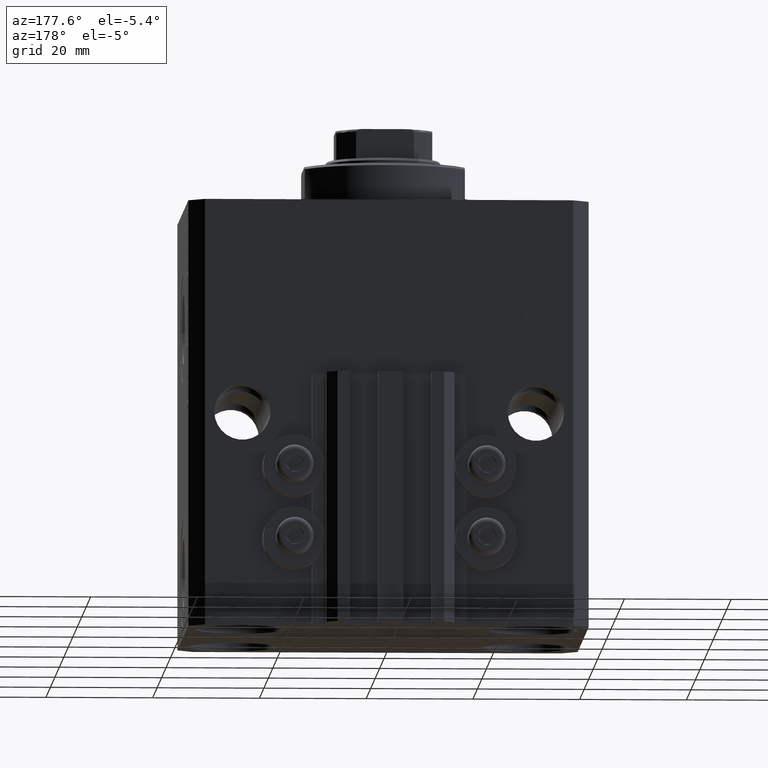
[diagram: clean part render]
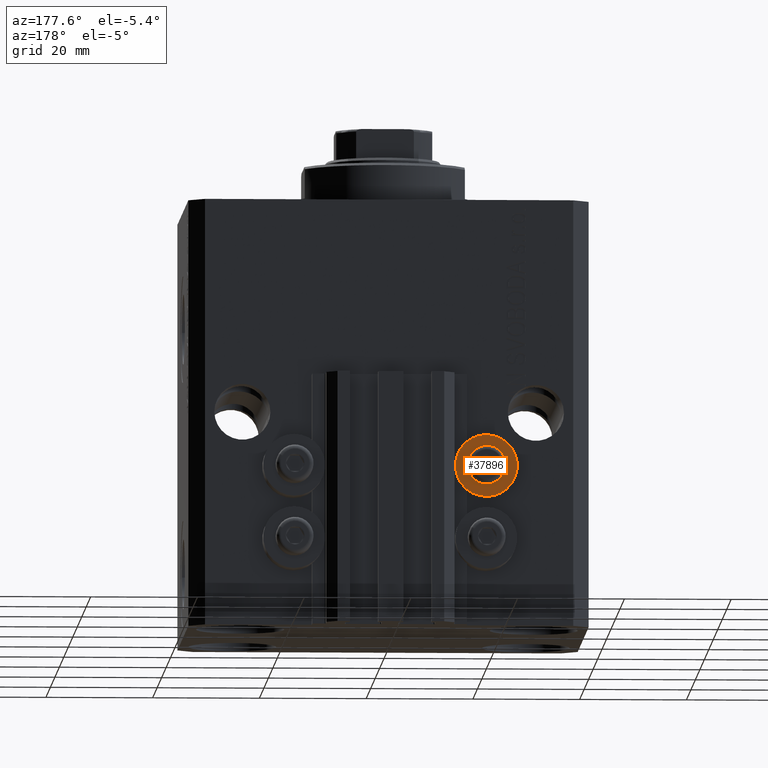
[diagram: same view with one face highlighted and labeled with its STEP entity id]
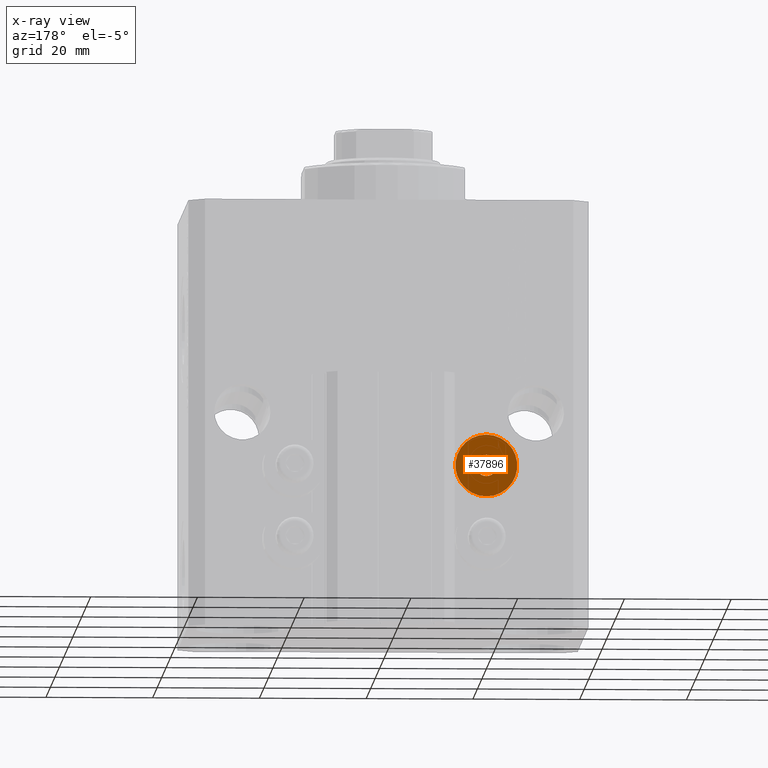
[diagram: x-ray of the same camera — body ghosted, the highlighted face saturated]
A machine part, auxiliary view. The second image highlights one B-rep face of the part: STEP entity #37896.
The next image is the same camera in x-ray: the body ghosted, the highlighted face saturated — about 0% of this face is hidden behind the body in this view.
In plain terms, the highlighted planar face has unit normal (0, -1, 0).
Its self-contained STEP definition (entity closure, byte-faithful):
#1105 = CARTESIAN_POINT ( 'NONE',  ( -18.00000000000000355, 32.49999999996100541, -48.39999999999999858 ) ) ;
#1200 = EDGE_CURVE ( 'NONE', #5708, #13391, #27921, .T. ) ;
#1711 = AXIS2_PLACEMENT_3D ( 'NONE', #6649, #6889, #7122 ) ;
#3338 = VERTEX_POINT ( 'NONE', #1105 ) ;
#3718 = AXIS2_PLACEMENT_3D ( 'NONE', #41409, #12500, #34310 ) ;
#5708 = VERTEX_POINT ( 'NONE', #44664 ) ;
#6141 = DIRECTION ( 'NONE',  ( 0.000000000000000000, 1.000000000000000000, 0.000000000000000000 ) ) ;
#6504 = ORIENTED_EDGE ( 'NONE', *, *, #13898, .F. ) ;
#6649 = CARTESIAN_POINT ( 'NONE',  ( -18.00000000000000355, 32.49999999996100541, -50.39999999999999858 ) ) ;
#6889 = DIRECTION ( 'NONE',  ( 0.000000000000000000, 1.000000000000000000, 0.000000000000000000 ) ) ;
#7122 = DIRECTION ( 'NONE',  ( 0.000000000000000000, 0.000000000000000000, 1.000000000000000000 ) ) ;
#9416 = EDGE_CURVE ( 'NONE', #3338, #24206, #31095, .T. ) ;
#9647 = PLANE ( 'NONE',  #3718 ) ;
#10401 = DIRECTION ( 'NONE',  ( 0.000000000000000000, 0.000000000000000000, 1.000000000000000000 ) ) ;
#12500 = DIRECTION ( 'NONE',  ( 0.000000000000000000, -1.000000000000000000, 0.000000000000000000 ) ) ;
#13391 = VERTEX_POINT ( 'NONE', #14170 ) ;
#13898 = EDGE_CURVE ( 'NONE', #24206, #3338, #34998, .T. ) ;
#13925 = CARTESIAN_POINT ( 'NONE',  ( -18.00000000000000355, 32.49999999996100541, -50.39999999999999858 ) ) ;
#14041 = AXIS2_PLACEMENT_3D ( 'NONE', #31758, #24428, #10401 ) ;
#14170 = CARTESIAN_POINT ( 'NONE',  ( -18.00000000000000355, 32.49999999996100541, -44.60000000000000142 ) ) ;
#14473 = CARTESIAN_POINT ( 'NONE',  ( -18.00000000000000355, 32.49999999996100541, -50.39999999999999858 ) ) ;
#16068 = FACE_OUTER_BOUND ( 'NONE', #19827, .T. ) ;
#18261 = DIRECTION ( 'NONE',  ( 0.000000000000000000, 0.000000000000000000, 1.000000000000000000 ) ) ;
#19827 = EDGE_LOOP ( 'NONE', ( #20865, #39350 ) ) ;
#20865 = ORIENTED_EDGE ( 'NONE', *, *, #29286, .T. ) ;
#24206 = VERTEX_POINT ( 'NONE', #33032 ) ;
#24428 = DIRECTION ( 'NONE',  ( -0.000000000000000000, 1.000000000000000000, -0.000000000000000000 ) ) ;
#26138 = ORIENTED_EDGE ( 'NONE', *, *, #9416, .F. ) ;
#26157 = CIRCLE ( 'NONE', #14041, 5.799999999999999822 ) ;
#27364 = EDGE_LOOP ( 'NONE', ( #26138, #6504 ) ) ;
#27921 = CIRCLE ( 'NONE', #29448, 5.799999999999999822 ) ;
#29286 = EDGE_CURVE ( 'NONE', #13391, #5708, #26157, .T. ) ;
#29448 = AXIS2_PLACEMENT_3D ( 'NONE', #14473, #36744, #18261 ) ;
#31095 = CIRCLE ( 'NONE', #44689, 2.000000000000001776 ) ;
#31758 = CARTESIAN_POINT ( 'NONE',  ( -18.00000000000000355, 32.49999999996100541, -50.39999999999999858 ) ) ;
#33032 = CARTESIAN_POINT ( 'NONE',  ( -18.00000000000000355, 32.49999999996100541, -52.40000000000000568 ) ) ;
#34310 = DIRECTION ( 'NONE',  ( 0.000000000000000000, -0.000000000000000000, -1.000000000000000000 ) ) ;
#34998 = CIRCLE ( 'NONE', #1711, 2.000000000000001776 ) ;
#36744 = DIRECTION ( 'NONE',  ( -0.000000000000000000, 1.000000000000000000, -0.000000000000000000 ) ) ;
#37896 = ADVANCED_FACE ( 'NONE', ( #41872, #16068 ), #9647, .F. ) ;
#39350 = ORIENTED_EDGE ( 'NONE', *, *, #1200, .T. ) ;
#41409 = CARTESIAN_POINT ( 'NONE',  ( -12.20000000000000284, 32.49999999996100541, -50.39999999999999858 ) ) ;
#41872 = FACE_BOUND ( 'NONE', #27364, .T. ) ;
#42831 = DIRECTION ( 'NONE',  ( 0.000000000000000000, 0.000000000000000000, 1.000000000000000000 ) ) ;
#44664 = CARTESIAN_POINT ( 'NONE',  ( -18.00000000000000355, 32.49999999996100541, -56.20000000000000284 ) ) ;
#44689 = AXIS2_PLACEMENT_3D ( 'NONE', #13925, #6141, #42831 ) ;